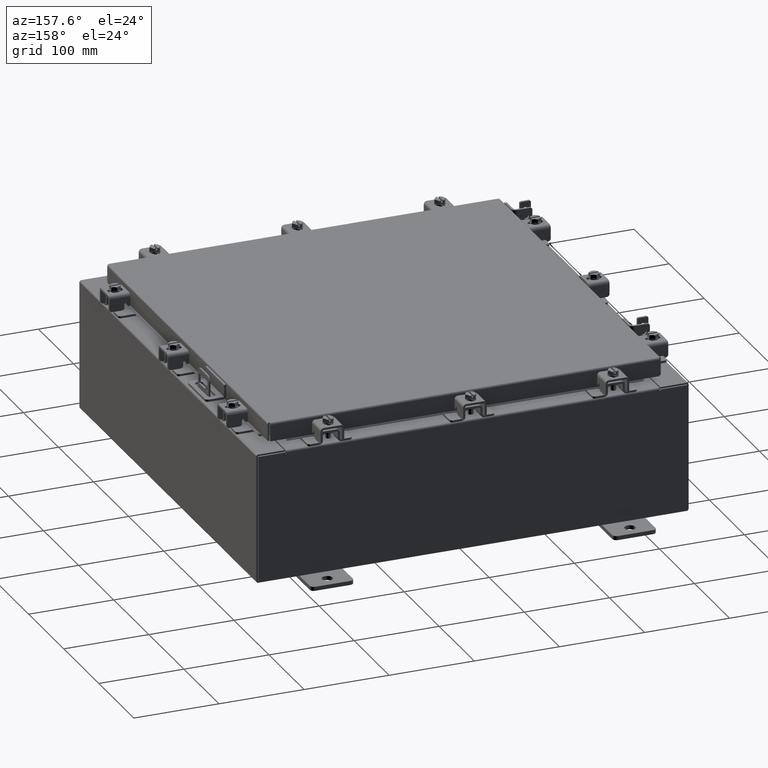
[diagram: clean part render]
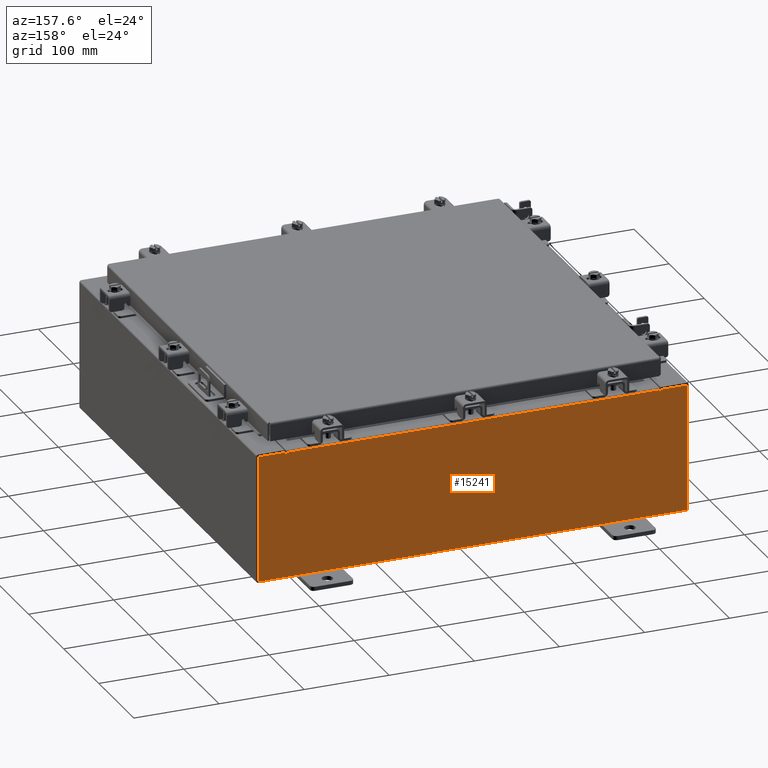
[diagram: same view with one face highlighted and labeled with its STEP entity id]
A machine part, auxiliary view. The second image highlights one B-rep face of the part: STEP entity #15241.
In plain terms, the highlighted planar face has unit normal (0, -1, 0).
Its self-contained STEP definition (entity closure, byte-faithful):
#337 = ORIENTED_EDGE ( 'NONE', *, *, #21859, .T. ) ;
#878 = CARTESIAN_POINT ( 'NONE',  ( -8.674549999999996400, 0.0000000000000000000, 2.874950000000000600 ) ) ;
#1588 = ORIENTED_EDGE ( 'NONE', *, *, #10721, .T. ) ;
#1599 = CIRCLE ( 'NONE', #21823, 0.01867500000000003900 ) ;
#1665 = CIRCLE ( 'NONE', #17056, 0.01867500000000003900 ) ;
#1872 = DIRECTION ( 'NONE',  ( -0.0000000000000000000, 1.000000000000000000, -0.0000000000000000000 ) ) ;
#2148 = CARTESIAN_POINT ( 'NONE',  ( -8.674549999999996400, 0.0000000000000000000, 2.925300000000000500 ) ) ;
#2281 = CARTESIAN_POINT ( 'NONE',  ( -9.925300000000000000, 0.0000000000000000000, -2.925299999999999600 ) ) ;
#2350 = LINE ( 'NONE', #21084, #20917 ) ;
#2359 = VERTEX_POINT ( 'NONE', #6941 ) ;
#2398 = ORIENTED_EDGE ( 'NONE', *, *, #7730, .F. ) ;
#2440 = CARTESIAN_POINT ( 'NONE',  ( 8.674550000000000000, 0.0000000000000000000, 2.874950000000000600 ) ) ;
#2501 = CARTESIAN_POINT ( 'NONE',  ( -8.637200000000000000, 1.024442997624098700E-016, 2.912300000000000600 ) ) ;
#2612 = EDGE_CURVE ( 'NONE', #2359, #4403, #11241, .T. ) ;
#2624 = DIRECTION ( 'NONE',  ( 1.000000000000000000, 0.0000000000000000000, 0.0000000000000000000 ) ) ;
#3407 = VERTEX_POINT ( 'NONE', #3532 ) ;
#3504 = VERTEX_POINT ( 'NONE', #2148 ) ;
#3508 = CARTESIAN_POINT ( 'NONE',  ( -9.925300000000000000, 0.0000000000000000000, 2.925300000000000500 ) ) ;
#3532 = CARTESIAN_POINT ( 'NONE',  ( 8.637200000000000000, 0.0000000000000000000, 2.874950000000000600 ) ) ;
#3788 = DIRECTION ( 'NONE',  ( -6.510859170600007400E-014, 0.0000000000000000000, -1.000000000000000000 ) ) ;
#3794 = ORIENTED_EDGE ( 'NONE', *, *, #13282, .T. ) ;
#3912 = CARTESIAN_POINT ( 'NONE',  ( -8.637199999999996400, 1.024442997624098700E-016, 2.912300000000000600 ) ) ;
#4325 = CARTESIAN_POINT ( 'NONE',  ( -9.925300000000000000, 0.0000000000000000000, 2.925300000000000500 ) ) ;
#4403 = VERTEX_POINT ( 'NONE', #8585 ) ;
#4651 = VERTEX_POINT ( 'NONE', #5713 ) ;
#5062 = DIRECTION ( 'NONE',  ( 0.0000000000000000000, 0.0000000000000000000, -1.000000000000000000 ) ) ;
#5152 = ORIENTED_EDGE ( 'NONE', *, *, #2612, .T. ) ;
#5175 = ORIENTED_EDGE ( 'NONE', *, *, #22308, .F. ) ;
#5713 = CARTESIAN_POINT ( 'NONE',  ( 9.925300000000000000, 0.0000000000000000000, -2.925299999999999600 ) ) ;
#5861 = ORIENTED_EDGE ( 'NONE', *, *, #16912, .F. ) ;
#6345 = CARTESIAN_POINT ( 'NONE',  ( 9.925300000000000000, 0.0000000000000000000, 2.925300000000000500 ) ) ;
#6941 = CARTESIAN_POINT ( 'NONE',  ( -9.925300000000000000, 0.0000000000000000000, -2.925299999999999600 ) ) ;
#7017 = VERTEX_POINT ( 'NONE', #18178 ) ;
#7456 = EDGE_CURVE ( 'NONE', #18779, #4651, #21568, .T. ) ;
#7458 = VERTEX_POINT ( 'NONE', #2440 ) ;
#7730 = EDGE_CURVE ( 'NONE', #20868, #3504, #8539, .T. ) ;
#7798 = VERTEX_POINT ( 'NONE', #11909 ) ;
#7940 = CARTESIAN_POINT ( 'NONE',  ( -9.925300000000000000, 0.0000000000000000000, 2.925300000000000500 ) ) ;
#8539 = LINE ( 'NONE', #13420, #12583 ) ;
#8585 = CARTESIAN_POINT ( 'NONE',  ( -9.925300000000000000, 0.0000000000000000000, 2.925300000000000500 ) ) ;
#9215 = LINE ( 'NONE', #2501, #17908 ) ;
#9408 = DIRECTION ( 'NONE',  ( 0.0000000000000000000, 0.0000000000000000000, -1.000000000000000000 ) ) ;
#9570 = EDGE_CURVE ( 'NONE', #7458, #3407, #1599, .T. ) ;
#9767 = EDGE_CURVE ( 'NONE', #4403, #3504, #16316, .T. ) ;
#9830 = CARTESIAN_POINT ( 'NONE',  ( -8.655874999999996400, 0.0000000000000000000, 2.874950000000000600 ) ) ;
#10313 = CARTESIAN_POINT ( 'NONE',  ( 8.637200000000000000, 0.0000000000000000000, 2.912300000000000600 ) ) ;
#10659 = EDGE_LOOP ( 'NONE', ( #2398, #5175, #5861, #1588, #21119, #14376, #22503, #337, #11489, #3794, #5152, #15986 ) ) ;
#10721 = EDGE_CURVE ( 'NONE', #17871, #13023, #9215, .T. ) ;
#11222 = VECTOR ( 'NONE', #9408, 39.37007874015748100 ) ;
#11241 = LINE ( 'NONE', #4325, #19950 ) ;
#11489 = ORIENTED_EDGE ( 'NONE', *, *, #7456, .T. ) ;
#11586 = DIRECTION ( 'NONE',  ( 0.0000000000000000000, 0.0000000000000000000, -1.000000000000000000 ) ) ;
#11663 = DIRECTION ( 'NONE',  ( 0.0000000000000000000, 0.0000000000000000000, 1.000000000000000000 ) ) ;
#11714 = DIRECTION ( 'NONE',  ( 0.0000000000000000000, -0.0000000000000000000, -1.000000000000000000 ) ) ;
#11739 = CARTESIAN_POINT ( 'NONE',  ( 8.637200000000000000, 0.0000000000000000000, 0.0000000000000000000 ) ) ;
#11909 = CARTESIAN_POINT ( 'NONE',  ( 8.674550000000001800, 0.0000000000000000000, 2.925300000000000500 ) ) ;
#12327 = CARTESIAN_POINT ( 'NONE',  ( 8.655875000000000000, 0.0000000000000000000, 2.874950000000000600 ) ) ;
#12583 = VECTOR ( 'NONE', #18618, 39.37007874015748100 ) ;
#12623 = VECTOR ( 'NONE', #21493, 39.37007874015748100 ) ;
#12815 = EDGE_CURVE ( 'NONE', #3407, #13023, #22459, .T. ) ;
#13023 = VERTEX_POINT ( 'NONE', #10313 ) ;
#13082 = DIRECTION ( 'NONE',  ( -0.0000000000000000000, -0.0000000000000000000, 1.000000000000000000 ) ) ;
#13282 = EDGE_CURVE ( 'NONE', #4651, #2359, #17261, .T. ) ;
#13420 = CARTESIAN_POINT ( 'NONE',  ( -8.674549999999996400, -0.0000000000000000000, 0.0000000000000000000 ) ) ;
#13798 = FACE_OUTER_BOUND ( 'NONE', #10659, .T. ) ;
#14061 = DIRECTION ( 'NONE',  ( 0.0000000000000000000, 0.0000000000000000000, -1.000000000000000000 ) ) ;
#14376 = ORIENTED_EDGE ( 'NONE', *, *, #9570, .F. ) ;
#14850 = EDGE_CURVE ( 'NONE', #7798, #7458, #2350, .T. ) ;
#15108 = PLANE ( 'NONE',  #21722 ) ;
#15241 = ADVANCED_FACE ( 'NONE', ( #13798 ), #15108, .F. ) ;
#15707 = DIRECTION ( 'NONE',  ( 1.000000000000000000, 0.0000000000000000000, 0.0000000000000000000 ) ) ;
#15986 = ORIENTED_EDGE ( 'NONE', *, *, #9767, .T. ) ;
#16316 = LINE ( 'NONE', #7940, #20955 ) ;
#16463 = DIRECTION ( 'NONE',  ( 1.000000000000000000, 0.0000000000000000000, 0.0000000000000000000 ) ) ;
#16738 = VECTOR ( 'NONE', #11663, 39.37007874015748100 ) ;
#16912 = EDGE_CURVE ( 'NONE', #17871, #7017, #17824, .T. ) ;
#16969 = VECTOR ( 'NONE', #15707, 39.37007874015748100 ) ;
#17056 = AXIS2_PLACEMENT_3D ( 'NONE', #9830, #22004, #11586 ) ;
#17253 = CARTESIAN_POINT ( 'NONE',  ( -8.637199999999996400, -0.0000000000000000000, 0.0000000000000000000 ) ) ;
#17261 = LINE ( 'NONE', #2281, #12623 ) ;
#17824 = LINE ( 'NONE', #17253, #21907 ) ;
#17871 = VERTEX_POINT ( 'NONE', #3912 ) ;
#17908 = VECTOR ( 'NONE', #16463, 39.37007874015748100 ) ;
#18178 = CARTESIAN_POINT ( 'NONE',  ( -8.637199999999996400, -0.0000000000000000000, 2.874950000000000600 ) ) ;
#18618 = DIRECTION ( 'NONE',  ( 0.0000000000000000000, 0.0000000000000000000, 1.000000000000000000 ) ) ;
#18640 = CARTESIAN_POINT ( 'NONE',  ( 0.0000000000000000000, 0.0000000000000000000, 0.0000000000000000000 ) ) ;
#18779 = VERTEX_POINT ( 'NONE', #6345 ) ;
#19825 = CARTESIAN_POINT ( 'NONE',  ( 9.925300000000000000, 0.0000000000000000000, 2.925300000000000500 ) ) ;
#19950 = VECTOR ( 'NONE', #13082, 39.37007874015748100 ) ;
#20868 = VERTEX_POINT ( 'NONE', #878 ) ;
#20917 = VECTOR ( 'NONE', #3788, 39.37007874015748100 ) ;
#20955 = VECTOR ( 'NONE', #2624, 39.37007874015748100 ) ;
#21044 = LINE ( 'NONE', #3508, #16969 ) ;
#21084 = CARTESIAN_POINT ( 'NONE',  ( 8.674549999999813500, -0.0000000000000000000, -5.647877341832707700E-013 ) ) ;
#21119 = ORIENTED_EDGE ( 'NONE', *, *, #12815, .F. ) ;
#21493 = DIRECTION ( 'NONE',  ( -1.000000000000000000, -0.0000000000000000000, -0.0000000000000000000 ) ) ;
#21568 = LINE ( 'NONE', #19825, #11222 ) ;
#21722 = AXIS2_PLACEMENT_3D ( 'NONE', #18640, #22136, #11714 ) ;
#21823 = AXIS2_PLACEMENT_3D ( 'NONE', #12327, #1872, #14061 ) ;
#21859 = EDGE_CURVE ( 'NONE', #7798, #18779, #21044, .T. ) ;
#21907 = VECTOR ( 'NONE', #5062, 39.37007874015748100 ) ;
#22004 = DIRECTION ( 'NONE',  ( -0.0000000000000000000, 1.000000000000000000, -0.0000000000000000000 ) ) ;
#22136 = DIRECTION ( 'NONE',  ( 0.0000000000000000000, -1.000000000000000000, 0.0000000000000000000 ) ) ;
#22308 = EDGE_CURVE ( 'NONE', #7017, #20868, #1665, .T. ) ;
#22459 = LINE ( 'NONE', #11739, #16738 ) ;
#22503 = ORIENTED_EDGE ( 'NONE', *, *, #14850, .F. ) ;